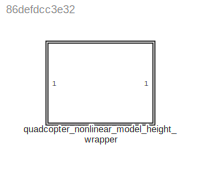
MODEL slx_86defdcc3e32
KIND model
CONFIG AbsTol = auto
CONFIG EnableMultiTasking = off
CONFIG FixedStep = auto
CONFIG MaxStep = auto
CONFIG MinStep = auto
CONFIG RelTol = 1e-3
CONFIG SampleTimeConstraint = Unconstrained
CONFIG SolverName = VariableStepAuto
CONFIG StartTime = 0.0
CONFIG StopTime = 10.0
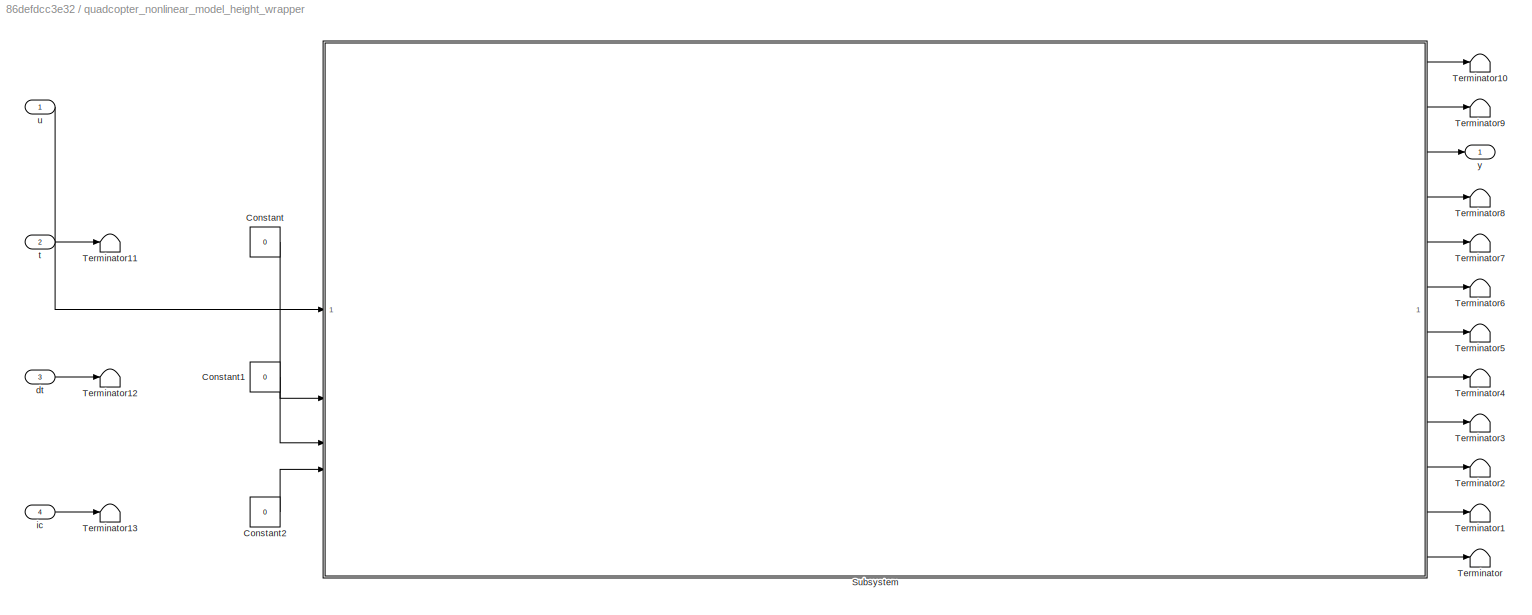
BLOCK [SubSystem] quadcopter_nonlinear_model_height_wrapper
BLOCK [Constant] quadcopter_nonlinear_model_height_wrapper/Constant
  Value = 0
BLOCK [Constant] quadcopter_nonlinear_model_height_wrapper/Constant1
  Value = 0
BLOCK [Constant] quadcopter_nonlinear_model_height_wrapper/Constant2
  Value = 0
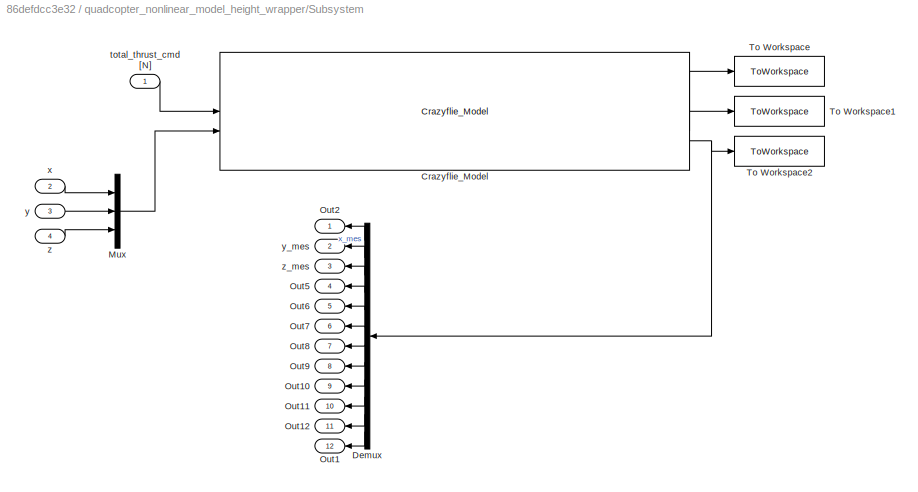
BLOCK [SubSystem] quadcopter_nonlinear_model_height_wrapper/Subsystem
BLOCK [Reference] quadcopter_nonlinear_model_height_wrapper/Subsystem/Crazyflie_Model  REF=Crazyflie_Library/Crazyflie_Model
  SourceBlock = Crazyflie_Library/Crazyflie_Model
  SourceType = SubSystem
BLOCK [Demux] quadcopter_nonlinear_model_height_wrapper/Subsystem/Demux
  NameLocation = top
  Outputs = 12
BLOCK [Mux] quadcopter_nonlinear_model_height_wrapper/Subsystem/Mux
  DisplayOption = bar
  Inputs = 3
BLOCK [Outport] quadcopter_nonlinear_model_height_wrapper/Subsystem/Out1
  Port = 12
BLOCK [Outport] quadcopter_nonlinear_model_height_wrapper/Subsystem/Out10
  Port = 9
BLOCK [Outport] quadcopter_nonlinear_model_height_wrapper/Subsystem/Out11
  Port = 10
BLOCK [Outport] quadcopter_nonlinear_model_height_wrapper/Subsystem/Out12
  Port = 11
BLOCK [Outport] quadcopter_nonlinear_model_height_wrapper/Subsystem/Out2
BLOCK [Outport] quadcopter_nonlinear_model_height_wrapper/Subsystem/Out5
  Port = 4
BLOCK [Outport] quadcopter_nonlinear_model_height_wrapper/Subsystem/Out6
  Port = 5
BLOCK [Outport] quadcopter_nonlinear_model_height_wrapper/Subsystem/Out7
  Port = 6
BLOCK [Outport] quadcopter_nonlinear_model_height_wrapper/Subsystem/Out8
  Port = 7
BLOCK [Outport] quadcopter_nonlinear_model_height_wrapper/Subsystem/Out9
  Port = 8
BLOCK [ToWorkspace] quadcopter_nonlinear_model_height_wrapper/Subsystem/To Workspace
  FixptAsFi = on
  MaxDataPoints = inf
  SampleTime = -1
  SaveFormat = Timeseries
  VariableName = per_motor
BLOCK [ToWorkspace] quadcopter_nonlinear_model_height_wrapper/Subsystem/To Workspace1
  FixptAsFi = on
  MaxDataPoints = inf
  SampleTime = -1
  SaveFormat = Timeseries
  VariableName = full_state_act
BLOCK [ToWorkspace] quadcopter_nonlinear_model_height_wrapper/Subsystem/To Workspace2
  FixptAsFi = on
  MaxDataPoints = inf
  SampleTime = -1
  SaveFormat = Timeseries
  VariableName = full_state_mes
BLOCK [Inport] quadcopter_nonlinear_model_height_wrapper/Subsystem/total_thrust_cmd [N]
BLOCK [Inport] quadcopter_nonlinear_model_height_wrapper/Subsystem/x
  Port = 2
BLOCK [Inport] quadcopter_nonlinear_model_height_wrapper/Subsystem/y
  Port = 3
BLOCK [Outport] quadcopter_nonlinear_model_height_wrapper/Subsystem/y_mes
  Port = 2
BLOCK [Inport] quadcopter_nonlinear_model_height_wrapper/Subsystem/z
  Port = 4
BLOCK [Outport] quadcopter_nonlinear_model_height_wrapper/Subsystem/z_mes
  Port = 3
BLOCK [Terminator] quadcopter_nonlinear_model_height_wrapper/Terminator
BLOCK [Terminator] quadcopter_nonlinear_model_height_wrapper/Terminator1
BLOCK [Terminator] quadcopter_nonlinear_model_height_wrapper/Terminator10
BLOCK [Terminator] quadcopter_nonlinear_model_height_wrapper/Terminator11
BLOCK [Terminator] quadcopter_nonlinear_model_height_wrapper/Terminator12
BLOCK [Terminator] quadcopter_nonlinear_model_height_wrapper/Terminator13
BLOCK [Terminator] quadcopter_nonlinear_model_height_wrapper/Terminator2
BLOCK [Terminator] quadcopter_nonlinear_model_height_wrapper/Terminator3
BLOCK [Terminator] quadcopter_nonlinear_model_height_wrapper/Terminator4
BLOCK [Terminator] quadcopter_nonlinear_model_height_wrapper/Terminator5
BLOCK [Terminator] quadcopter_nonlinear_model_height_wrapper/Terminator6
BLOCK [Terminator] quadcopter_nonlinear_model_height_wrapper/Terminator7
BLOCK [Terminator] quadcopter_nonlinear_model_height_wrapper/Terminator8
BLOCK [Terminator] quadcopter_nonlinear_model_height_wrapper/Terminator9
BLOCK [Inport] quadcopter_nonlinear_model_height_wrapper/dt
  Port = 3
BLOCK [Inport] quadcopter_nonlinear_model_height_wrapper/ic
  Port = 4
BLOCK [Inport] quadcopter_nonlinear_model_height_wrapper/t
  Port = 2
BLOCK [Inport] quadcopter_nonlinear_model_height_wrapper/u
  PortDimensions = 1
BLOCK [Outport] quadcopter_nonlinear_model_height_wrapper/y
  NameLocation = top
  PortDimensions = 1
LINE quadcopter_nonlinear_model_height_wrapper/Constant1:1 -> quadcopter_nonlinear_model_height_wrapper/Subsystem:3
LINE quadcopter_nonlinear_model_height_wrapper/Constant2:1 -> quadcopter_nonlinear_model_height_wrapper/Subsystem:4
LINE quadcopter_nonlinear_model_height_wrapper/Constant:1 -> quadcopter_nonlinear_model_height_wrapper/Subsystem:2
LINE quadcopter_nonlinear_model_height_wrapper/Subsystem/Crazyflie_Model:1 -> quadcopter_nonlinear_model_height_wrapper/Subsystem/To Workspace:1
LINE quadcopter_nonlinear_model_height_wrapper/Subsystem/Crazyflie_Model:2 -> quadcopter_nonlinear_model_height_wrapper/Subsystem/To Workspace1:1
NET quadcopter_nonlinear_model_height_wrapper/Subsystem/Crazyflie_Model:3 -> quadcopter_nonlinear_model_height_wrapper/Subsystem/Demux:1, quadcopter_nonlinear_model_height_wrapper/Subsystem/To Workspace2:1
LINE quadcopter_nonlinear_model_height_wrapper/Subsystem/Demux:1 -> quadcopter_nonlinear_model_height_wrapper/Subsystem/Out2:1
LINE quadcopter_nonlinear_model_height_wrapper/Subsystem/Demux:10 -> quadcopter_nonlinear_model_height_wrapper/Subsystem/Out11:1
LINE quadcopter_nonlinear_model_height_wrapper/Subsystem/Demux:11 -> quadcopter_nonlinear_model_height_wrapper/Subsystem/Out12:1
LINE quadcopter_nonlinear_model_height_wrapper/Subsystem/Demux:12 -> quadcopter_nonlinear_model_height_wrapper/Subsystem/Out1:1
LINE quadcopter_nonlinear_model_height_wrapper/Subsystem/Demux:2 -> quadcopter_nonlinear_model_height_wrapper/Subsystem/y_mes:1
LINE quadcopter_nonlinear_model_height_wrapper/Subsystem/Demux:3 -> quadcopter_nonlinear_model_height_wrapper/Subsystem/z_mes:1
LINE quadcopter_nonlinear_model_height_wrapper/Subsystem/Demux:4 -> quadcopter_nonlinear_model_height_wrapper/Subsystem/Out5:1
LINE quadcopter_nonlinear_model_height_wrapper/Subsystem/Demux:5 -> quadcopter_nonlinear_model_height_wrapper/Subsystem/Out6:1
LINE quadcopter_nonlinear_model_height_wrapper/Subsystem/Demux:6 -> quadcopter_nonlinear_model_height_wrapper/Subsystem/Out7:1
LINE quadcopter_nonlinear_model_height_wrapper/Subsystem/Demux:7 -> quadcopter_nonlinear_model_height_wrapper/Subsystem/Out8:1
LINE quadcopter_nonlinear_model_height_wrapper/Subsystem/Demux:8 -> quadcopter_nonlinear_model_height_wrapper/Subsystem/Out9:1
LINE quadcopter_nonlinear_model_height_wrapper/Subsystem/Demux:9 -> quadcopter_nonlinear_model_height_wrapper/Subsystem/Out10:1
LINE quadcopter_nonlinear_model_height_wrapper/Subsystem/Mux:1 -> quadcopter_nonlinear_model_height_wrapper/Subsystem/Crazyflie_Model:2
LINE quadcopter_nonlinear_model_height_wrapper/Subsystem/total_thrust_cmd [N]:1 -> quadcopter_nonlinear_model_height_wrapper/Subsystem/Crazyflie_Model:1
LINE quadcopter_nonlinear_model_height_wrapper/Subsystem/x:1 -> quadcopter_nonlinear_model_height_wrapper/Subsystem/Mux:1
LINE quadcopter_nonlinear_model_height_wrapper/Subsystem/y:1 -> quadcopter_nonlinear_model_height_wrapper/Subsystem/Mux:2
LINE quadcopter_nonlinear_model_height_wrapper/Subsystem/z:1 -> quadcopter_nonlinear_model_height_wrapper/Subsystem/Mux:3
LINE quadcopter_nonlinear_model_height_wrapper/Subsystem:1 -> quadcopter_nonlinear_model_height_wrapper/Terminator10:1
LINE quadcopter_nonlinear_model_height_wrapper/Subsystem:10 -> quadcopter_nonlinear_model_height_wrapper/Terminator2:1
LINE quadcopter_nonlinear_model_height_wrapper/Subsystem:11 -> quadcopter_nonlinear_model_height_wrapper/Terminator1:1
LINE quadcopter_nonlinear_model_height_wrapper/Subsystem:12 -> quadcopter_nonlinear_model_height_wrapper/Terminator:1
LINE quadcopter_nonlinear_model_height_wrapper/Subsystem:2 -> quadcopter_nonlinear_model_height_wrapper/Terminator9:1
LINE quadcopter_nonlinear_model_height_wrapper/Subsystem:3 -> quadcopter_nonlinear_model_height_wrapper/y:1
LINE quadcopter_nonlinear_model_height_wrapper/Subsystem:4 -> quadcopter_nonlinear_model_height_wrapper/Terminator8:1
LINE quadcopter_nonlinear_model_height_wrapper/Subsystem:5 -> quadcopter_nonlinear_model_height_wrapper/Terminator7:1
LINE quadcopter_nonlinear_model_height_wrapper/Subsystem:6 -> quadcopter_nonlinear_model_height_wrapper/Terminator6:1
LINE quadcopter_nonlinear_model_height_wrapper/Subsystem:7 -> quadcopter_nonlinear_model_height_wrapper/Terminator5:1
LINE quadcopter_nonlinear_model_height_wrapper/Subsystem:8 -> quadcopter_nonlinear_model_height_wrapper/Terminator4:1
LINE quadcopter_nonlinear_model_height_wrapper/Subsystem:9 -> quadcopter_nonlinear_model_height_wrapper/Terminator3:1
LINE quadcopter_nonlinear_model_height_wrapper/dt:1 -> quadcopter_nonlinear_model_height_wrapper/Terminator12:1
LINE quadcopter_nonlinear_model_height_wrapper/ic:1 -> quadcopter_nonlinear_model_height_wrapper/Terminator13:1
LINE quadcopter_nonlinear_model_height_wrapper/t:1 -> quadcopter_nonlinear_model_height_wrapper/Terminator11:1
LINE quadcopter_nonlinear_model_height_wrapper/u:1 -> quadcopter_nonlinear_model_height_wrapper/Subsystem:1
note: NET lines group one-source signal fan-out (src -> all destinations, sorted); 1:1 wires keep LINE
